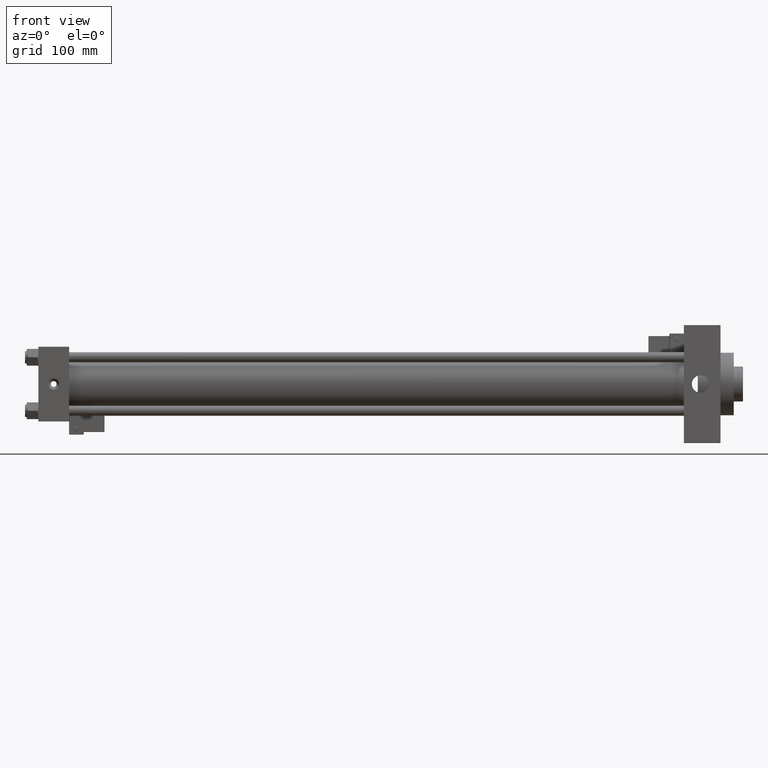
[diagram: clean part render]
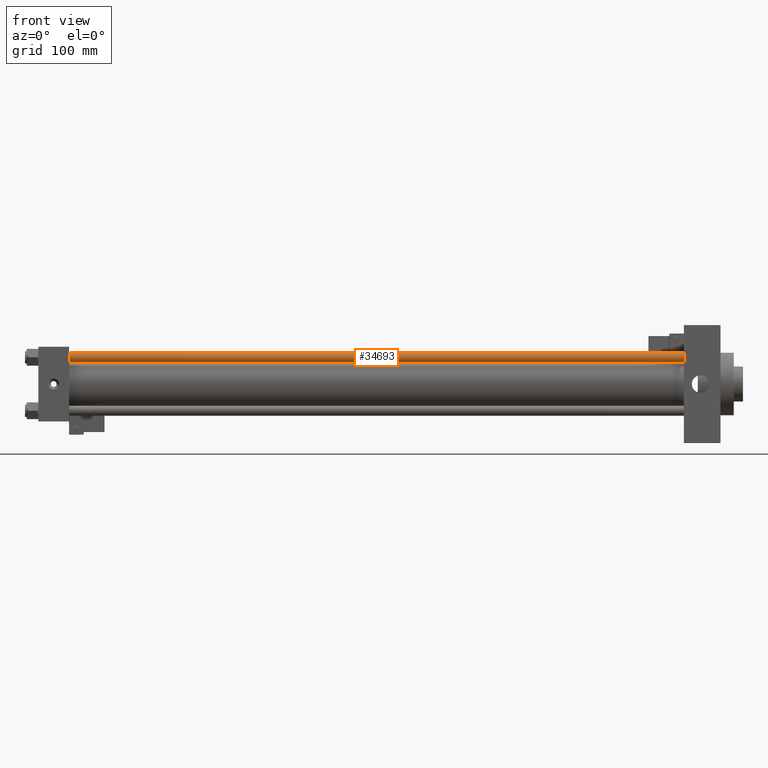
[diagram: same view with one face highlighted and labeled with its STEP entity id]
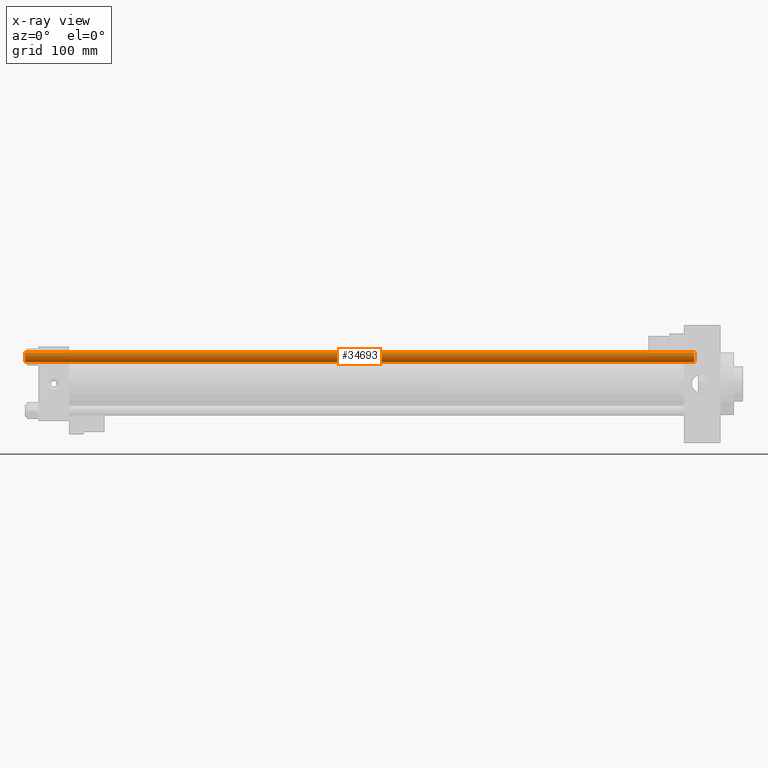
[diagram: x-ray of the same camera — body ghosted, the highlighted face saturated]
A machine part, front view. The second image highlights one B-rep face of the part: STEP entity #34693.
The next image is the same camera in x-ray: the body ghosted, the highlighted face saturated — about 0% of this face is hidden behind the body in this view.
In plain terms, the highlighted cylindrical surface (edge-blend (fillet) strip) has radius 6 mm, axis along (1, 0, 0).
Its self-contained STEP definition (entity closure, byte-faithful):
#1708 = DIRECTION ( 'NONE',  ( -0.000000000000000000, -0.000000000000000000, -1.000000000000000000 ) ) ;
#3522 = DIRECTION ( 'NONE',  ( 1.000000000000000000, 0.000000000000000000, 0.000000000000000000 ) ) ;
#5898 = CIRCLE ( 'NONE', #25156, 6.000000000000000888 ) ;
#6574 = AXIS2_PLACEMENT_3D ( 'NONE', #16734, #31961, #35632 ) ;
#6849 = CARTESIAN_POINT ( 'NONE',  ( -6.000000000000000888, 0.000000000000000000, 0.5000000000000559552 ) ) ;
#7961 = AXIS2_PLACEMENT_3D ( 'NONE', #28426, #35504, #3522 ) ;
#10086 = LINE ( 'NONE', #29248, #34904 ) ;
#10100 = DIRECTION ( 'NONE',  ( 1.000000000000000000, 0.000000000000000000, 0.000000000000000000 ) ) ;
#10476 = LINE ( 'NONE', #42989, #39745 ) ;
#11061 = ORIENTED_EDGE ( 'NONE', *, *, #15473, .T. ) ;
#14693 = EDGE_CURVE ( 'NONE', #18471, #39548, #10476, .T. ) ;
#15473 = EDGE_CURVE ( 'NONE', #19831, #18471, #50701, .T. ) ;
#15947 = FACE_OUTER_BOUND ( 'NONE', #27579, .T. ) ;
#16734 = CARTESIAN_POINT ( 'NONE',  ( 0.000000000000000000, 0.000000000000000000, 805.0000000000000000 ) ) ;
#18471 = VERTEX_POINT ( 'NONE', #25135 ) ;
#19831 = VERTEX_POINT ( 'NONE', #30842 ) ;
#20949 = ORIENTED_EDGE ( 'NONE', *, *, #28481, .F. ) ;
#25135 = CARTESIAN_POINT ( 'NONE',  ( 6.000000000000000888, 7.347880794884120722E-16, 804.5000000000002274 ) ) ;
#25156 = AXIS2_PLACEMENT_3D ( 'NONE', #27057, #46054, #10100 ) ;
#27057 = CARTESIAN_POINT ( 'NONE',  ( 0.000000000000000000, 0.000000000000000000, 0.5000000000000559552 ) ) ;
#27579 = EDGE_LOOP ( 'NONE', ( #11061, #44303, #35113, #20949 ) ) ;
#28027 = CYLINDRICAL_SURFACE ( 'NONE', #6574, 6.000000000000000888 ) ;
#28426 = CARTESIAN_POINT ( 'NONE',  ( 0.000000000000000000, 0.000000000000000000, 804.5000000000002274 ) ) ;
#28481 = EDGE_CURVE ( 'NONE', #19831, #47334, #10086, .T. ) ;
#29248 = CARTESIAN_POINT ( 'NONE',  ( -6.000000000000000888, 0.000000000000000000, 805.0000000000000000 ) ) ;
#30842 = CARTESIAN_POINT ( 'NONE',  ( -6.000000000000000888, 0.000000000000000000, 804.5000000000002274 ) ) ;
#31961 = DIRECTION ( 'NONE',  ( -0.000000000000000000, -0.000000000000000000, -1.000000000000000000 ) ) ;
#34693 = ADVANCED_FACE ( 'NONE', ( #15947 ), #28027, .T. ) ;
#34904 = VECTOR ( 'NONE', #1708, 1000.000000000000000 ) ;
#35113 = ORIENTED_EDGE ( 'NONE', *, *, #38874, .T. ) ;
#35504 = DIRECTION ( 'NONE',  ( 0.000000000000000000, 0.000000000000000000, -1.000000000000000000 ) ) ;
#35632 = DIRECTION ( 'NONE',  ( -1.000000000000000000, 0.000000000000000000, 0.000000000000000000 ) ) ;
#38540 = DIRECTION ( 'NONE',  ( -0.000000000000000000, -0.000000000000000000, -1.000000000000000000 ) ) ;
#38874 = EDGE_CURVE ( 'NONE', #39548, #47334, #5898, .T. ) ;
#39548 = VERTEX_POINT ( 'NONE', #44779 ) ;
#39745 = VECTOR ( 'NONE', #38540, 1000.000000000000000 ) ;
#42989 = CARTESIAN_POINT ( 'NONE',  ( 6.000000000000000888, 7.347880794884120722E-16, 805.0000000000000000 ) ) ;
#44303 = ORIENTED_EDGE ( 'NONE', *, *, #14693, .T. ) ;
#44779 = CARTESIAN_POINT ( 'NONE',  ( 6.000000000000000888, 7.347880794884120722E-16, 0.5000000000000559552 ) ) ;
#46054 = DIRECTION ( 'NONE',  ( -0.000000000000000000, -0.000000000000000000, 1.000000000000000000 ) ) ;
#47334 = VERTEX_POINT ( 'NONE', #6849 ) ;
#50701 = CIRCLE ( 'NONE', #7961, 6.000000000000000888 ) ;